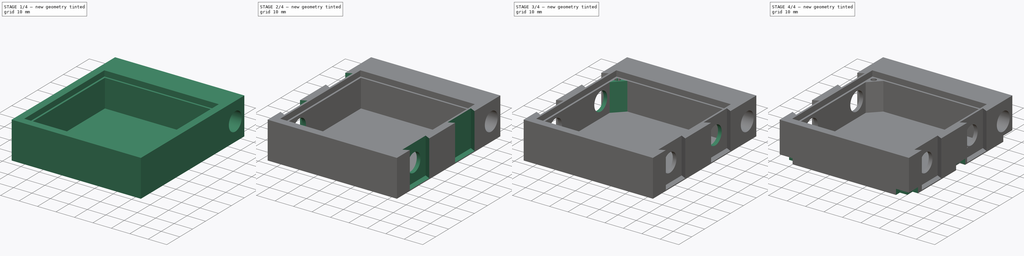
[diagram: build sequence overview — one tinted view per stage of 4, left to right]
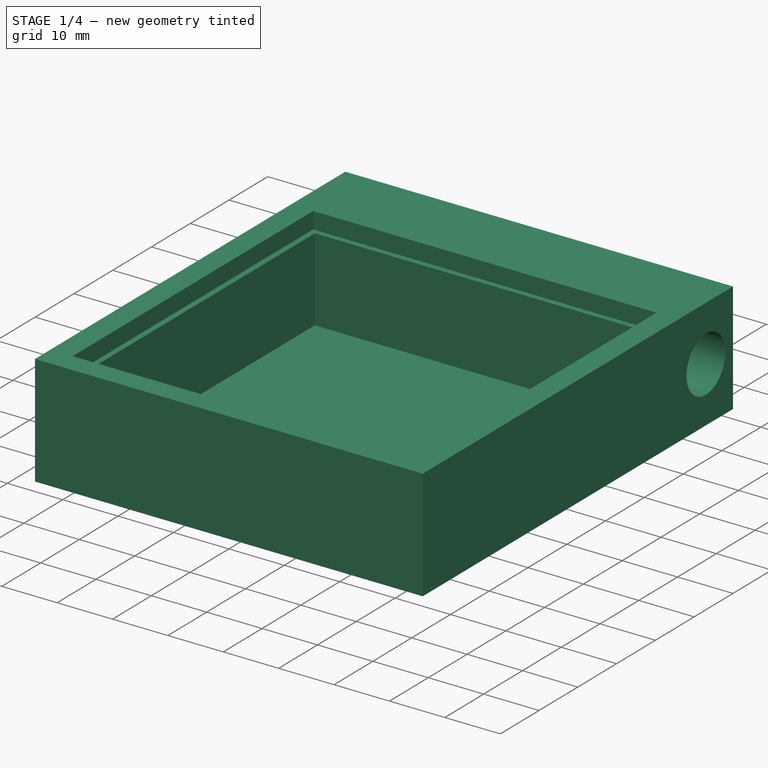
[diagram: stage 1 of 4 — iso view after this stage's code; geometry added in this stage tinted green]
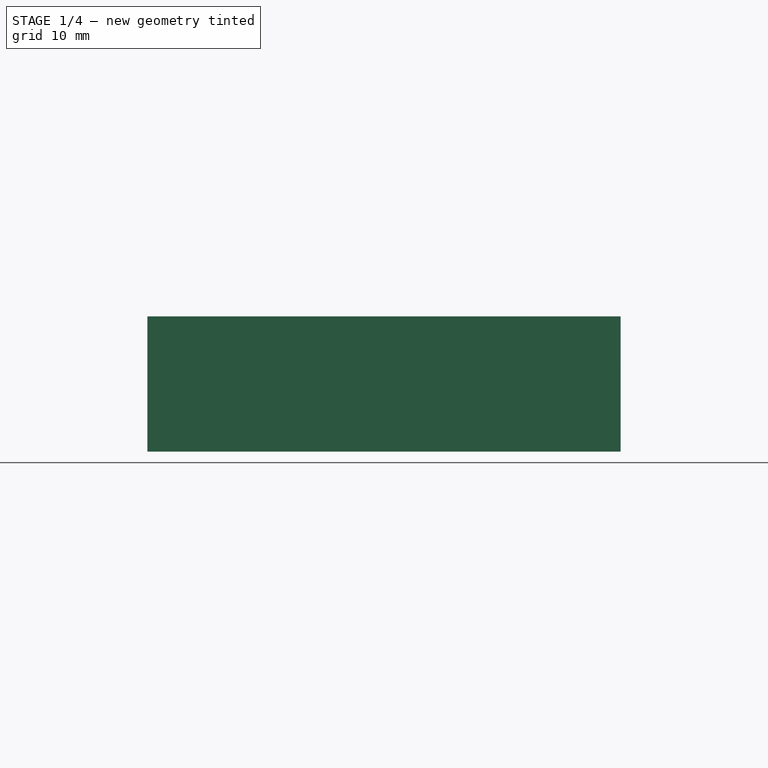
[diagram: stage 1 of 4 — front view after this stage's code; geometry added in this stage tinted green]
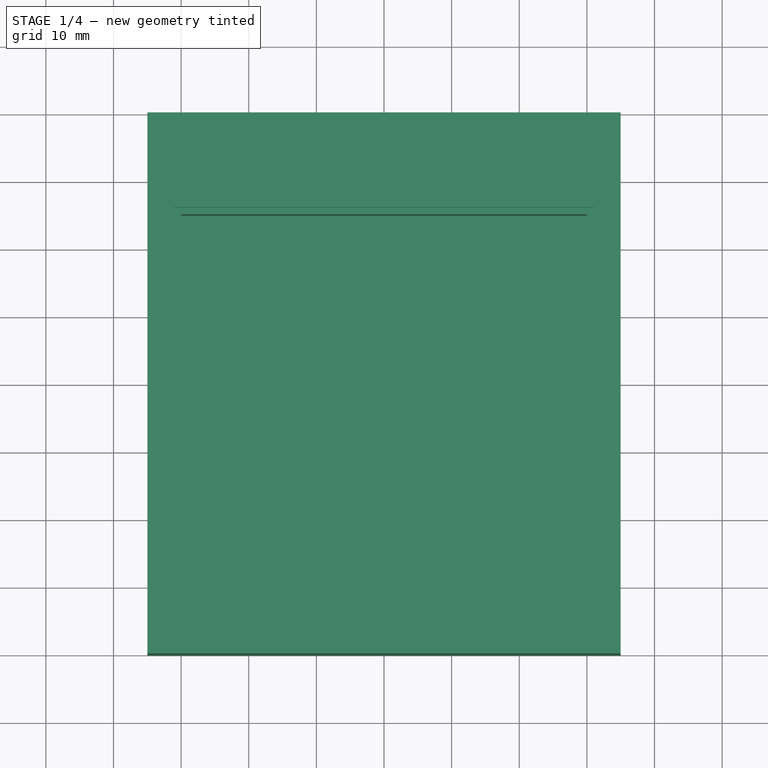
[diagram: stage 1 of 4 — top view after this stage's code; geometry added in this stage tinted green]
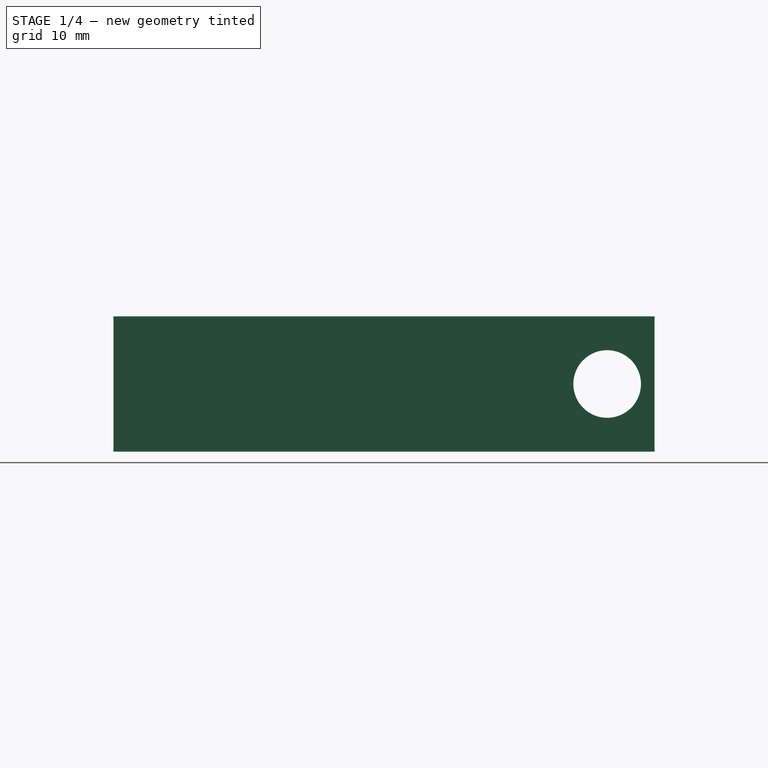
[diagram: stage 1 of 4 — right view after this stage's code; geometry added in this stage tinted green]
FCSTD DOCUMENT  (FreeCAD 0.18R16146 (Git))
Label: Formicarium_Template_S
License: All rights reserved
LicenseURL: http://en.wikipedia.org/wiki/All_rights_reserved
objects: Sketcher::SketchObject×12, PartDesign::Pocket×8, PartDesign::Pad×2, PartDesign::Mirrored×2, PartDesign::LinearPattern×2, PartDesign::SubtractiveLoft×1, PartDesign::MultiTransform×1, PartDesign::Body×1
note: 40 computed .brp shape members not serialized (recipe doc carries the construction recipe); baked Part::Feature solids carry a one-line shape summary decoded from their .brp

FEATURE [Sketcher::SketchObject] Sketch
  MapMode = 5
  Support = -> [XY_Plane]
  sketch-geometry (4):
    g0: LineSegment StartX=-35 StartY=40 StartZ=0 EndX=35 EndY=40 EndZ=0
    g1: LineSegment StartX=35 StartY=40 StartZ=0 EndX=35 EndY=-40 EndZ=0
    g2: LineSegment StartX=35 StartY=-40 StartZ=0 EndX=-35 EndY=-40 EndZ=0
    g3: LineSegment StartX=-35 StartY=-40 StartZ=0 EndX=-35 EndY=40 EndZ=0
  constraints (10):
    c: Coincident(g0,g1)
    c: Coincident(g1,g2)
    c: Coincident(g2,g3)
    c: Coincident(g3,g0)
    c: Horizontal(g0)
    c: Vertical(g3)
    c: DistanceX(g0,g0) = 70
    c: DistanceY(g1,g1) = 80
    c: Symmetric(g0,g1,g-1)
    c: Symmetric(g2,g1,g-2)
FEATURE [PartDesign::Pad] Pad  label="Main Body"
  Length = 20
  Length2 = 100
  Profile = -> Sketch
  Type = 0
FEATURE [Sketcher::SketchObject] Sketch001
  MapMode = 5
  Placement = pos=(0,0,20) rot=(0,0,1;0rad)
  Support = -> [Pad]
  sketch-geometry (4):
    g0: LineSegment StartX=-31 StartY=26 StartZ=0 EndX=31 EndY=26 EndZ=0
    g1: LineSegment StartX=31 StartY=26 StartZ=0 EndX=31 EndY=-36 EndZ=0
    g2: LineSegment StartX=31 StartY=-36 StartZ=0 EndX=-31 EndY=-36 EndZ=0
    g3: LineSegment StartX=-31 StartY=-36 StartZ=0 EndX=-31 EndY=26 EndZ=0
  constraints (11):
    c: Coincident(g0,g1)
    c: Coincident(g1,g2)
    c: Coincident(g2,g3)
    c: Coincident(g3,g0)
    c: Horizontal(g0)
    c: Vertical(g3)
    c: DistanceX(g2,g2) = 62
    c: DistanceY(g1,g1) = 62
    c: Symmetric(g2,g1,g-2)
    c: Vertical(g1)
    c: DistanceY(g2,g-1) = 36
FEATURE [PartDesign::Pocket] Pocket  label="Glass_cut"
  BaseFeature = -> Pad
  Length = 3
  Length2 = 100
  Profile = -> Sketch001
  Type = 0
FEATURE [Sketcher::SketchObject] Sketch002
  MapMode = 5
  Placement = pos=(0,0,17) rot=(0,0,1;0rad)
  Support = -> [Pocket]
  sketch-geometry (4):
    g0: LineSegment StartX=-30 StartY=25 StartZ=0 EndX=30 EndY=25 EndZ=0
    g1: LineSegment StartX=30 StartY=25 StartZ=0 EndX=30 EndY=-35 EndZ=0
    g2: LineSegment StartX=30 StartY=-35 StartZ=0 EndX=-30 EndY=-35 EndZ=0
    g3: LineSegment StartX=-30 StartY=-35 StartZ=0 EndX=-30 EndY=25 EndZ=0
  constraints (11):
    c: Coincident(g0,g1)
    c: Coincident(g1,g2)
    c: Coincident(g2,g3)
    c: Coincident(g3,g0)
    c: Horizontal(g0)
    c: Vertical(g1)
    c: DistanceX(g2,g2) = 60
    c: DistanceY(g3,g3) = 60
    c: Symmetric(g2,g1,g-2)
    c: Vertical(g3)
    c: DistanceY(g1,g-1) = 35
FEATURE [PartDesign::Pocket] Pocket001  label="Body Cut"
  BaseFeature = -> Pocket
  Length = 15
  Length2 = 100
  Profile = -> Sketch002
  Type = 0
FEATURE [Sketcher::SketchObject] Sketch003
  ExternalGeometry = -> [Pocket001]
  MapMode = 5
  Placement = pos=(0,0,2) rot=(0,0,1;0rad)
  Support = -> [Pocket001]
  sketch-geometry (4):
    g0: LineSegment StartX=-27.4 StartY=-32 StartZ=0 EndX=-27 EndY=-32 EndZ=0
    g1: LineSegment StartX=-27 StartY=-32 StartZ=0 EndX=-27 EndY=-32.4 EndZ=0
    g2: LineSegment StartX=-27 StartY=-32.4 StartZ=0 EndX=-27.4 EndY=-32.4 EndZ=0
    g3: LineSegment StartX=-27.4 StartY=-32.4 StartZ=0 EndX=-27.4 EndY=-32 EndZ=0
  constraints (14):
    c: Coincident(g0,g1)
    c: Coincident(g1,g2)
    c: Coincident(g2,g3)
    c: Coincident(g3,g0)
    c: Horizontal(g0)
    c: Horizontal(g2)
    c: Vertical(g1)
    c: Vertical(g3)
    c: DistanceX(g2,g2) = 0.4
    c: DistanceY(g1,g1) = 0.4
    c: DistanceX(g-3,g-1) = 30
    c: DistanceY(g0,g-1) = 32
    c: DistanceX(g0,g-1) = 27
    c: DistanceY(g-3,g-1) = 35
FEATURE [Sketcher::SketchObject] Sketch004
  MapMode = 5
  Placement = pos=(-35,0,0) rot=(0.57735,-0.57735,-0.57735;2.0944rad)
  sketch-geometry (1):
    g0: Circle CenterX=-33 CenterY=10 CenterZ=0 NormalX=0 NormalY=0 NormalZ=1 AngleXU=0 Radius=5
  constraints (3):
    c: Radius(g0) = 5
    c: DistanceY(g-1,g0) = 10
    c: DistanceX(g0) = -33
FEATURE [PartDesign::Pocket] Pocket003  label="Heating Cable"
  BaseFeature = -> Pocket001
  Length = 5
  Length2 = 100
  Profile = -> Sketch004
  Type = 1
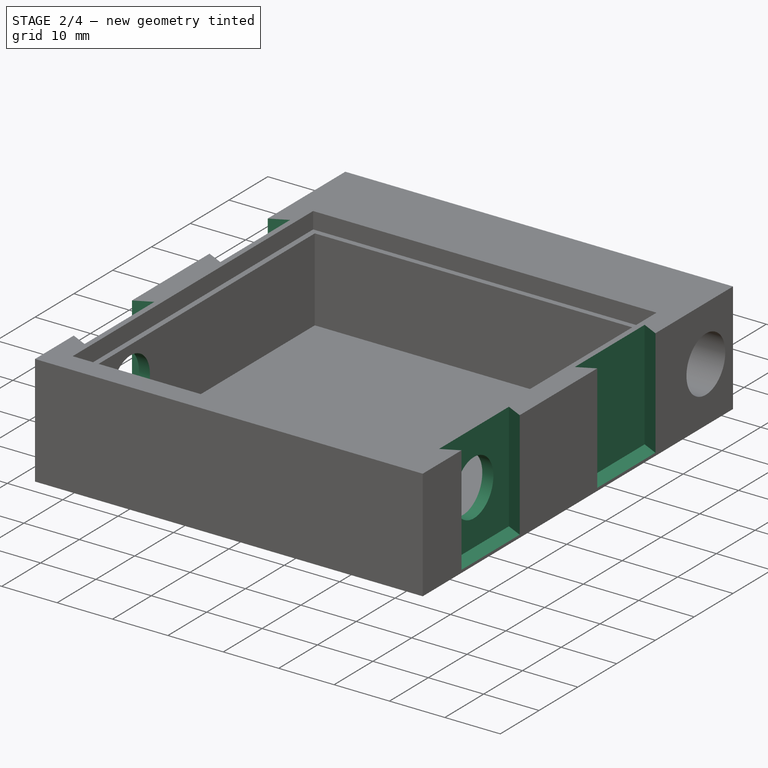
[diagram: stage 2 of 4 — iso view after this stage's code; geometry added in this stage tinted green]
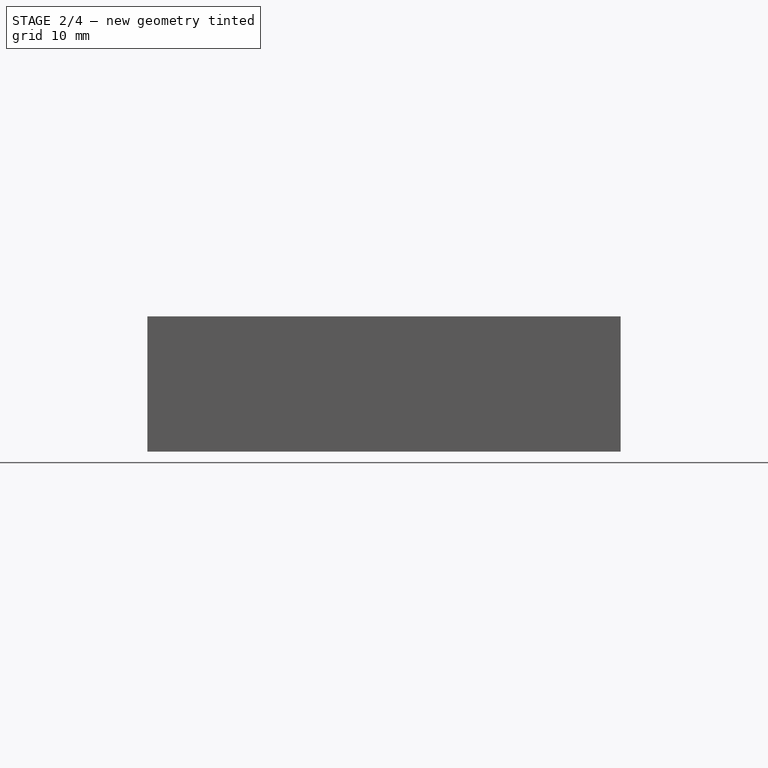
[diagram: stage 2 of 4 — front view after this stage's code; geometry added in this stage tinted green]
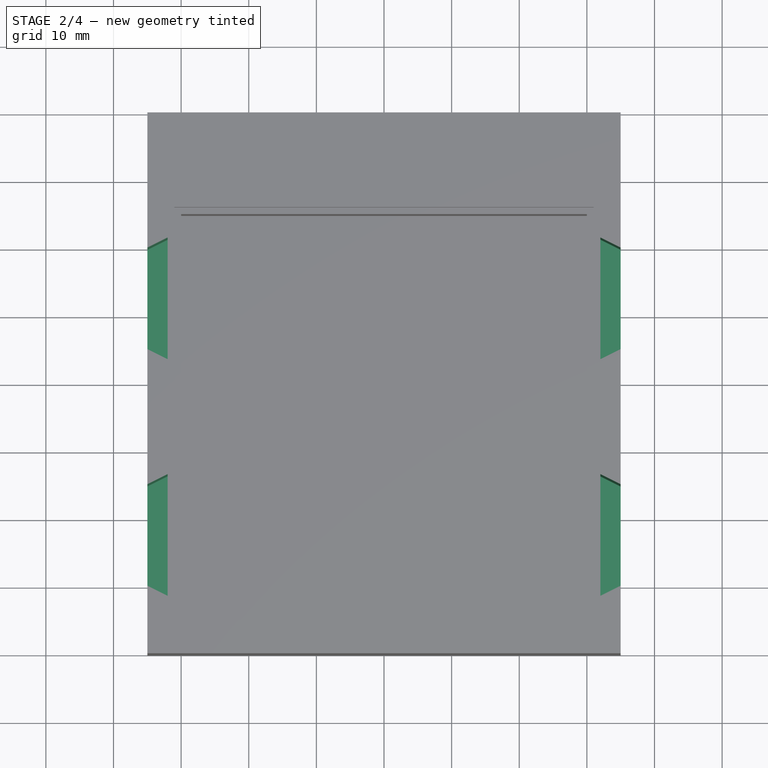
[diagram: stage 2 of 4 — top view after this stage's code; geometry added in this stage tinted green]
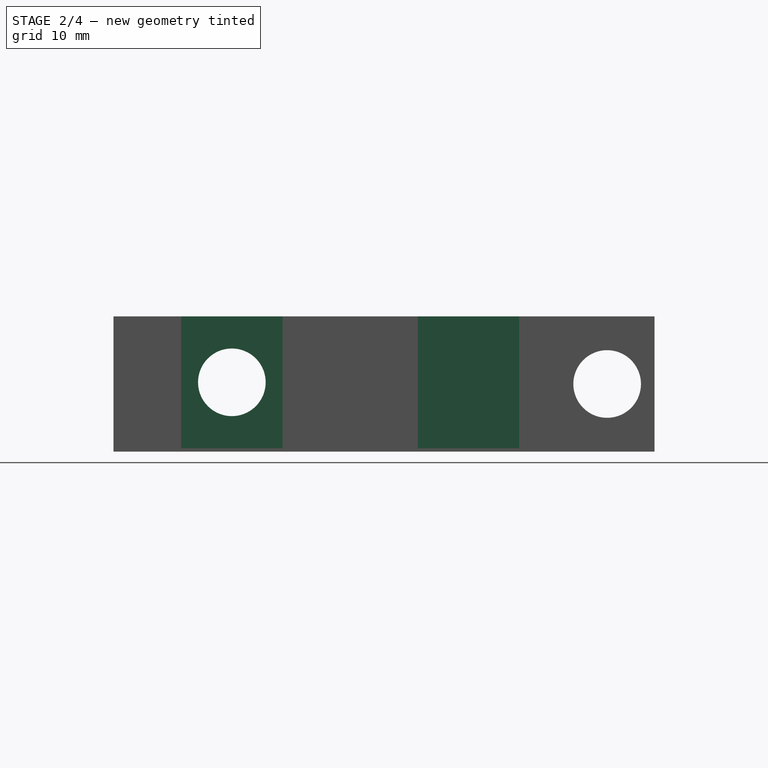
[diagram: stage 2 of 4 — right view after this stage's code; geometry added in this stage tinted green]
FEATURE [Sketcher::SketchObject] Sketch005
  MapMode = 5
  Placement = pos=(0,0,20) rot=(0,0,1;0rad)
  Support = -> [Pocket003]
  sketch-geometry (8):
    g0: LineSegment StartX=-35 StartY=-30 StartZ=0 EndX=-35 EndY=-15 EndZ=0
    g1: LineSegment StartX=-35 StartY=-15 StartZ=0 EndX=-32 EndY=-13.5 EndZ=0
    g2: LineSegment StartX=-32 StartY=-13.5 StartZ=0 EndX=-32 EndY=-31.5 EndZ=0
    g3: LineSegment StartX=-32 StartY=-31.5 StartZ=0 EndX=-35 EndY=-30 EndZ=0
    g4: LineSegment StartX=-35 StartY=20 StartZ=0 EndX=-35 EndY=5 EndZ=0
    g5: LineSegment StartX=-35 StartY=5 StartZ=0 EndX=-32 EndY=3.5 EndZ=0
    g6: LineSegment StartX=-32 StartY=3.5 StartZ=0 EndX=-32 EndY=21.5 EndZ=0
    g7: LineSegment StartX=-32 StartY=21.5 StartZ=0 EndX=-35 EndY=20 EndZ=0
  constraints (24):
    c: Coincident(g0,g1)
    c: Coincident(g1,g2)
    c: Coincident(g2,g3)
    c: Coincident(g3,g0)
    c: Vertical(g2)
    c: DistanceY(g2,g2) = 18
    c: DistanceY(g0,g0) = 15
    c: Vertical(g0)
    c: DistanceX(g0,g1) = 3
    c: Equal(g1,g3)
    c: DistanceY(g0,g-1) = 30
    c: DistanceX(g0,g-1) = 35
    c: Coincident(g4,g5)
    c: Coincident(g5,g6)
    c: Coincident(g6,g7)
    c: Coincident(g7,g4)
    c: Equal(g5,g3)
    c: Equal(g7,g1)
    c: Equal(g6,g2)
    c: Equal(g4,g0)
    c: DistanceX(g4,g6) = 3
    c: Vertical(g4)
    c: DistanceY(g0,g4) = 20
    c: DistanceX(g4,g-1) = 35
FEATURE [PartDesign::Pocket] Pocket004  label="Connector Cutouts"
  BaseFeature = -> Pocket003
  Length = 19.5
  Length2 = 100
  Profile = -> Sketch005
  Type = 0
FEATURE [PartDesign::Mirrored] Mirrored  label="CC_Mirror"
  BaseFeature = -> Pocket004
  MirrorPlane = -> Sketch005 [V_Axis]
  Originals = -> [Pocket004]
FEATURE [Sketcher::SketchObject] Sketch006
  ExternalGeometry = -> [Mirrored]
  MapMode = 5
  Placement = pos=(-32,0,0) rot=(0.57735,-0.57735,-0.57735;2.0944rad)
  Support = -> [Mirrored]
  sketch-geometry (1):
    g0: Circle CenterX=22.5 CenterY=10.25 CenterZ=0 NormalX=0 NormalY=0 NormalZ=1 AngleXU=0 Radius=5
  constraints (3):
    c: Radius(g0) = 5
    c: DistanceY(g-3,g0) = 9.75
    c: DistanceX(g-3,g0) = 7.5
FEATURE [PartDesign::Pocket] Pocket005
  BaseFeature = -> Mirrored
  Length = 5
  Length2 = 100
  Profile = -> Sketch006
  Type = 1
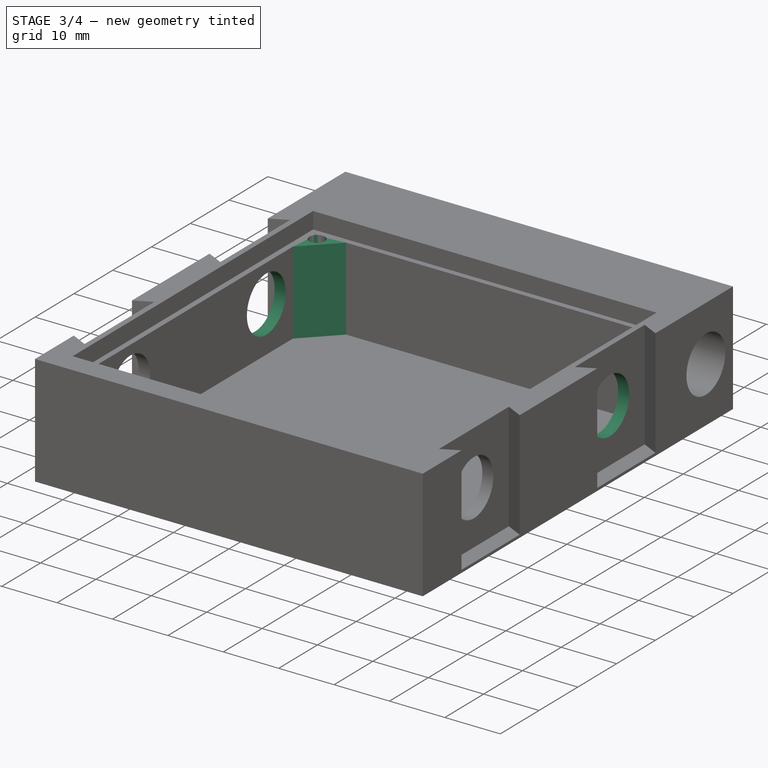
[diagram: stage 3 of 4 — iso view after this stage's code; geometry added in this stage tinted green]
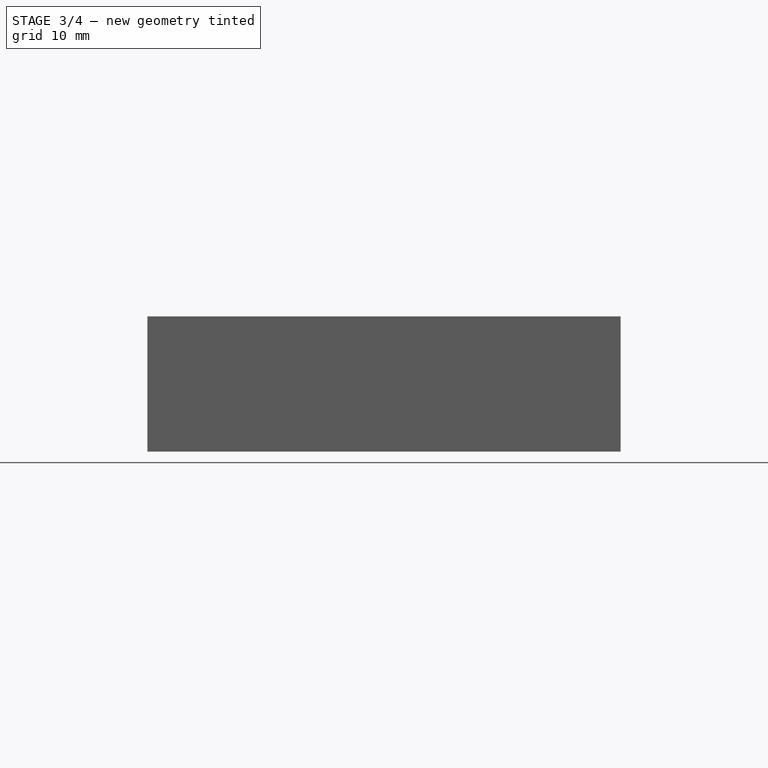
[diagram: stage 3 of 4 — front view after this stage's code; geometry added in this stage tinted green]
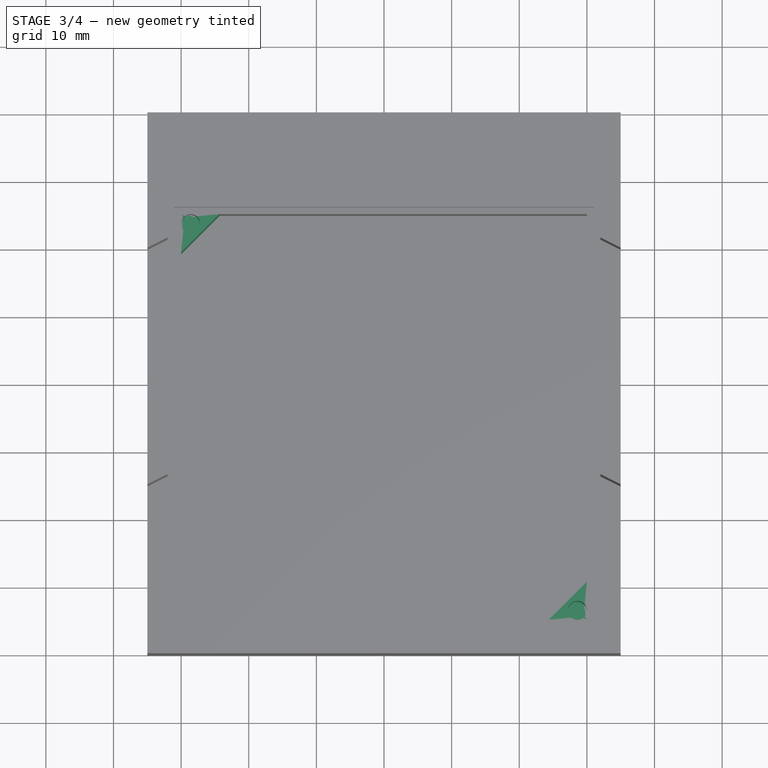
[diagram: stage 3 of 4 — top view after this stage's code; geometry added in this stage tinted green]
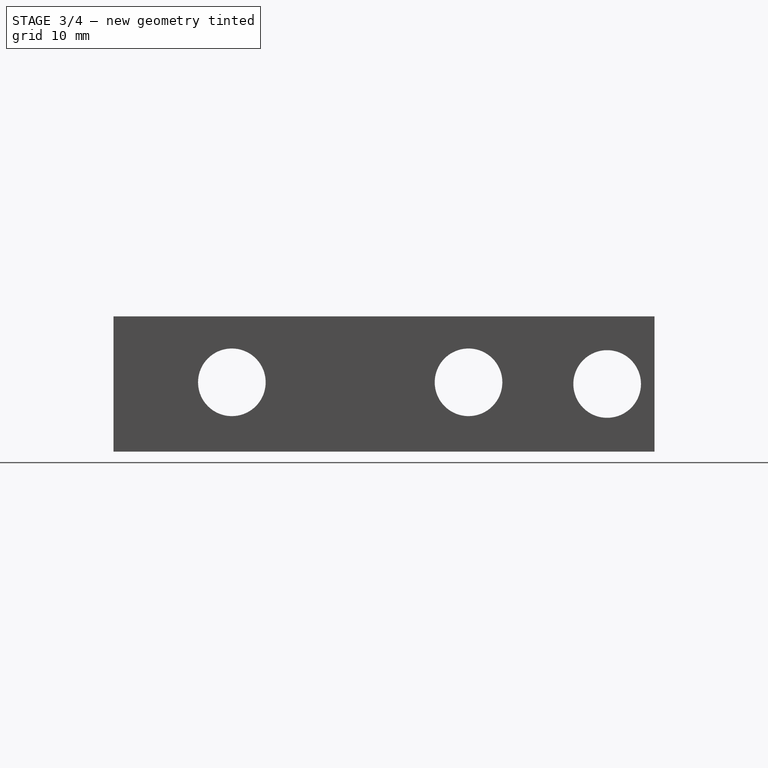
[diagram: stage 3 of 4 — right view after this stage's code; geometry added in this stage tinted green]
FEATURE [Sketcher::SketchObject] Sketch007
  ExternalGeometry = -> [Pocket005]
  MapMode = 5
  Placement = pos=(-32,-1.2e-13,0) rot=(0.57735,-0.57735,-0.57735;2.0944rad)
  Support = -> [Pocket005]
  sketch-geometry (1):
    g0: Circle CenterX=-12.5 CenterY=10.25 CenterZ=0 NormalX=0 NormalY=0 NormalZ=1 AngleXU=0 Radius=5
  constraints (3):
    c: Radius(g0) = 5
    c: DistanceY(g-3,g0) = 9.75
    c: DistanceX(g-3,g0) = 7.5
FEATURE [PartDesign::Pocket] Pocket006
  BaseFeature = -> Pocket005
  Length = 2
  Length2 = 100
  Profile = -> Sketch007
  Type = 1
FEATURE [Sketcher::SketchObject] Sketch010
  MapMode = 5
  Placement = pos=(0,0,2) rot=(0,0,1;0rad)
  sketch-geometry (6):
    g0: LineSegment StartX=-30 StartY=25 StartZ=0 EndX=-30 EndY=19.3431 EndZ=0
    g1: LineSegment StartX=-30 StartY=19.3431 StartZ=0 EndX=-24.3431 EndY=25 EndZ=0
    g2: LineSegment StartX=-24.3431 StartY=25 StartZ=0 EndX=-30 EndY=25 EndZ=0
    g3: LineSegment StartX=24.3431 StartY=-35 StartZ=0 EndX=30 EndY=-35 EndZ=0
    g4: LineSegment StartX=30 StartY=-35 StartZ=0 EndX=30 EndY=-29.3431 EndZ=0
    g5: LineSegment StartX=30 StartY=-29.3431 StartZ=0 EndX=24.3431 EndY=-35 EndZ=0
  constraints (12):
    c: Coincident(g0,g1)
    c: Coincident(g1,g2)
    c: Coincident(g2,g0)
    c: Coincident(g3,g4)
    c: Coincident(g4,g5)
    c: Coincident(g5,g3)
    c: Distance(g1) = 8
    c: Perpendicular(g0,g2)
    c: Equal(g0,g2)
    c: Perpendicular(g4,g3)
    c: Distance(g5) = 8
    c: Equal(g3,g4)
FEATURE [PartDesign::Pad] Pad001  label="Borehole_Support"
  BaseFeature = -> Pocket006
  Length = 15
  Length2 = 100
  Profile = -> Sketch010
  Type = 0
FEATURE [Sketcher::SketchObject] Sketch011
  ExternalGeometry = -> [Pad001]
  MapMode = 5
  Placement = pos=(0,0,17) rot=(0,0,1;0rad)
  Support = -> [Pad001]
  sketch-geometry (2):
    g0: Circle CenterX=-28.6 CenterY=23.6 CenterZ=0 NormalX=0 NormalY=0 NormalZ=1 AngleXU=0 Radius=1.4
    g1: Circle CenterX=28.6 CenterY=-33.6 CenterZ=0 NormalX=0 NormalY=0 NormalZ=1 AngleXU=0 Radius=1.4
  constraints (6):
    c: Radius(g0) = 1.4
    c: Radius(g1) = 1.4
    c: Tangent(g0,g-3)
    c: Tangent(g0,g-4)
    c: Tangent(g1,g-5)
    c: Tangent(g-6,g1)
FEATURE [PartDesign::Pocket] Pocket009  label="Boreholes"
  BaseFeature = -> Pad001
  Length = 8
  Length2 = 100
  Profile = -> Sketch011
  Type = 0
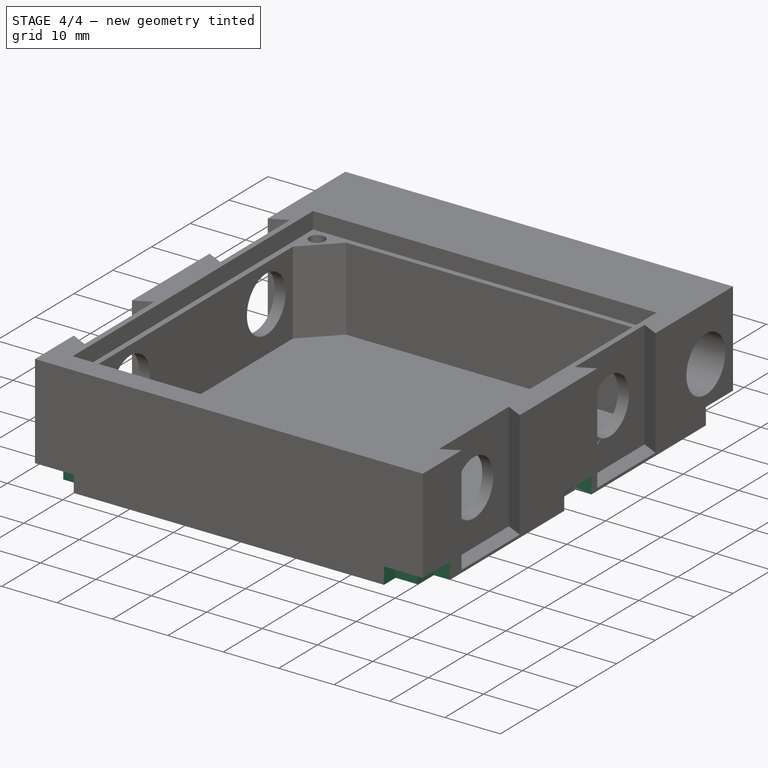
[diagram: stage 4 of 4 — iso view after this stage's code; geometry added in this stage tinted green]
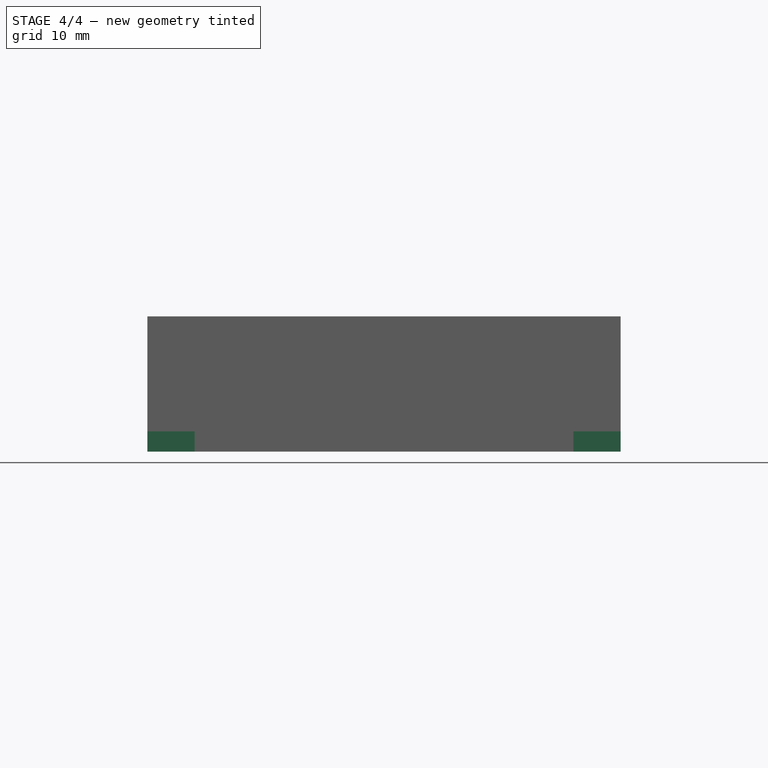
[diagram: stage 4 of 4 — front view after this stage's code; geometry added in this stage tinted green]
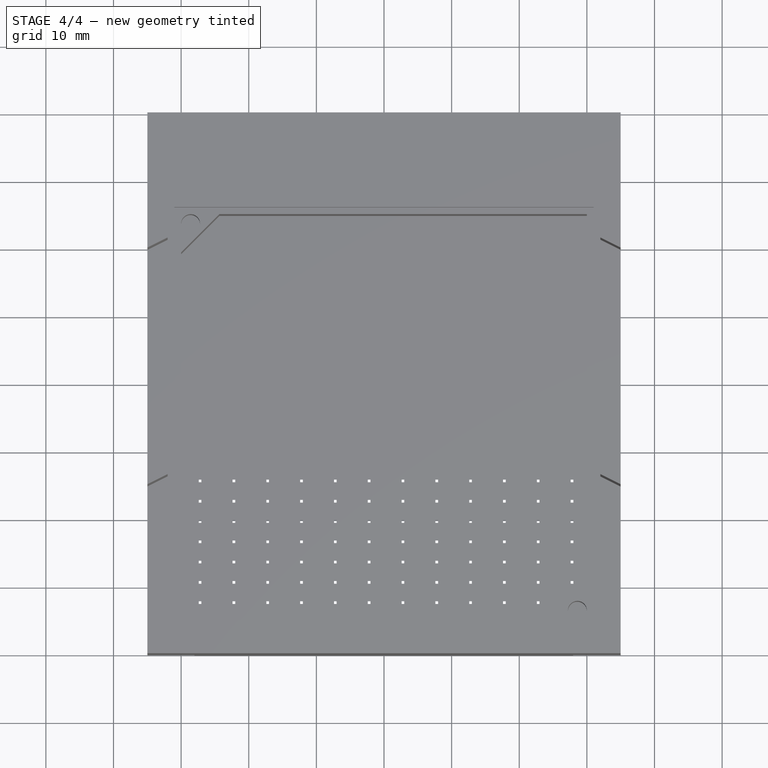
[diagram: stage 4 of 4 — top view after this stage's code; geometry added in this stage tinted green]
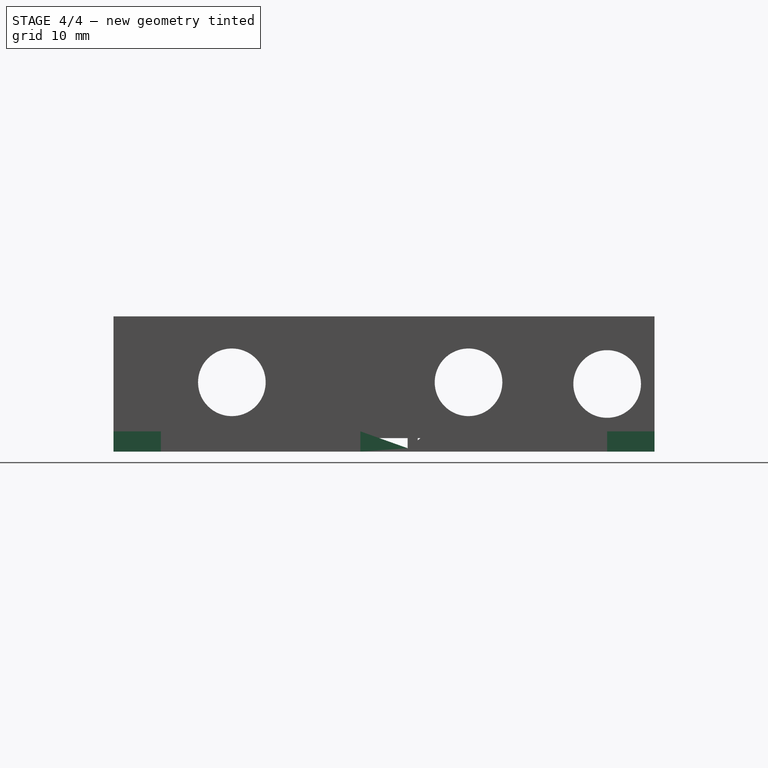
[diagram: stage 4 of 4 — right view after this stage's code; geometry added in this stage tinted green]
FEATURE [Sketcher::SketchObject] Sketch012
  MapMode = 5
  Placement = pos=(0,0,0) rot=(1,0,0;3.14159rad)
  Support = -> [Pocket009]
  sketch-geometry (16):
    g0: LineSegment StartX=-35 StartY=3.5 StartZ=0 EndX=-32 EndY=3.5 EndZ=0
    g1: LineSegment StartX=-32 StartY=3.5 StartZ=0 EndX=-32 EndY=-3.5 EndZ=0
    g2: LineSegment StartX=-32 StartY=-3.5 StartZ=0 EndX=-35 EndY=-3.5 EndZ=0
    g3: LineSegment StartX=-35 StartY=-3.5 StartZ=0 EndX=-35 EndY=3.5 EndZ=0
    g4: LineSegment StartX=-35 StartY=33 StartZ=0 EndX=-32 EndY=33 EndZ=0
    g5: LineSegment StartX=-32 StartY=33 StartZ=0 EndX=-32 EndY=37 EndZ=0
    g6: LineSegment StartX=-32 StartY=37 StartZ=0 EndX=-28 EndY=37 EndZ=0
    g7: LineSegment StartX=-28 StartY=37 StartZ=0 EndX=-28 EndY=40 EndZ=0
    g8: LineSegment StartX=-28 StartY=40 StartZ=0 EndX=-35 EndY=40 EndZ=0
    g9: LineSegment StartX=-35 StartY=40 StartZ=0 EndX=-35 EndY=33 EndZ=0
    g10: LineSegment StartX=-35 StartY=-33 StartZ=0 EndX=-35 EndY=-40 EndZ=0
    g11: LineSegment StartX=-35 StartY=-40 StartZ=0 EndX=-28 EndY=-40 EndZ=0
    g12: LineSegment StartX=-28 StartY=-40 StartZ=0 EndX=-28 EndY=-37 EndZ=0
    g13: LineSegment StartX=-28 StartY=-37 StartZ=0 EndX=-32 EndY=-37 EndZ=0
    g14: LineSegment StartX=-32 StartY=-37 StartZ=0 EndX=-32 EndY=-33 EndZ=0
    g15: LineSegment StartX=-32 StartY=-33 StartZ=0 EndX=-35 EndY=-33 EndZ=0
  constraints (47):
    c: Coincident(g0,g1)
    c: Coincident(g1,g2)
    c: Coincident(g2,g3)
    c: Coincident(g3,g0)
    c: Horizontal(g0)
    c: Horizontal(g2)
    c: Vertical(g3)
    c: DistanceY(g1,g1) = 7
    c: DistanceX(g0,g0) = 3
    c: Symmetric(g1,g0,g-1)
    c: DistanceX(g2) = -35
    c: Coincident(g4,g5)
    c: Coincident(g5,g6)
    c: Coincident(g6,g7)
    c: Vertical(g7)
    c: Coincident(g7,g8)
    c: Coincident(g8,g9)
    c: Coincident(g9,g4)
    c: Vertical(g9)
    c: Vertical(g5)
    c: Horizontal(g8)
    c: Horizontal(g4)
    c: DistanceX(g4,g4) = 3
    c: DistanceX(g8,g8) = 7
    c: DistanceY(g7,g7) = 3
    c: DistanceY(g9,g9) = 7
    c: Perpendicular(g5,g6)
    c: DistanceX(g4,g-1) = 35
    c: DistanceY(g8) = 40
    c: Coincident(g10,g11)
    c: Horizontal(g11)
    c: Coincident(g11,g12)
    c: Coincident(g12,g13)
    c: Horizontal(g13)
    c: Coincident(g13,g14)
    c: Coincident(g14,g15)
    c: Coincident(g15,g10)
    c: Horizontal(g15)
    c: Vertical(g14)
    c: Vertical(g10)
    c: Vertical(g12)
    c: DistanceX(g11,g11) = 7
    c: DistanceX(g15,g15) = 3
    c: DistanceY(g10,g10) = 7
    c: DistanceY(g12,g12) = 3
    c: DistanceX(g10,g-1) = 35
    c: DistanceY(g10,g-1) = 40
FEATURE [PartDesign::Pocket] Pocket010
  BaseFeature = -> Pocket009
  Length = 3
  Length2 = 100
  Profile = -> Sketch012
  Type = 0
FEATURE [PartDesign::Mirrored] Mirrored001
  BaseFeature = -> Pocket010
  MirrorPlane = -> Sketch012 [V_Axis]
  Originals = -> [Pocket010]
FEATURE [Sketcher::SketchObject] Sketch013
  MapMode = 5
  Placement = pos=(0,0,0) rot=(1,0,0;3.14159rad)
  Support = -> [Pocket006]
  sketch-geometry (4):
    g0: LineSegment StartX=-27.8 StartY=32.8 StartZ=0 EndX=-26.6 EndY=32.8 EndZ=0
    g1: LineSegment StartX=-26.6 StartY=32.8 StartZ=0 EndX=-26.6 EndY=31.6 EndZ=0
    g2: LineSegment StartX=-26.6 StartY=31.6 StartZ=0 EndX=-27.8 EndY=31.6 EndZ=0
    g3: LineSegment StartX=-27.8 StartY=31.6 StartZ=0 EndX=-27.8 EndY=32.8 EndZ=0
  constraints (12):
    c: Coincident(g0,g1)
    c: Coincident(g1,g2)
    c: Coincident(g2,g3)
    c: Coincident(g3,g0)
    c: Horizontal(g0)
    c: Horizontal(g2)
    c: Vertical(g1)
    c: Vertical(g3)
    c: DistanceY(g1,g1) = 1.2
    c: DistanceX(g0,g0) = 1.2
    c: DistanceX(g1) = -26.6
    c: DistanceY(g1) = 31.6
FEATURE [PartDesign::SubtractiveLoft] SubtractiveLoft
  BaseFeature = -> Mirrored001
  Closed = false
  Profile = -> Sketch013
  Ruled = false
  Sections = -> [Sketch003]
FEATURE [PartDesign::LinearPattern] LinearPattern
  Direction = -> Sketch013 [H_Axis]
  Length = 55
  Occurrences = 12
FEATURE [PartDesign::LinearPattern] LinearPattern001
  Direction = -> Sketch013 [V_Axis]
  Length = 18
  Occurrences = 7
  Reversed = true
FEATURE [PartDesign::MultiTransform] MultiTransform
  BaseFeature = -> SubtractiveLoft
  Originals = -> [SubtractiveLoft]
  Transformations = -> [LinearPattern,LinearPattern001]
FEATURE [PartDesign::Body] Body
  Group = -> [Sketch,Pad,Sketch001,Pocket,Sketch002,Pocket001,Sketch003,Sketch004,Pocket003,Sketch005,Pocket004,Mirrored,Sketch006,Pocket005,Sketch007,Pocket006,Sketch010,Pad001,Sketch011,Pocket009,Sketch012,Pocket010,Mirrored001,Sketch013,SubtractiveLoft,MultiTransform,LinearPattern,LinearPattern001]
  Origin = -> Origin
  Tip = -> MultiTransform
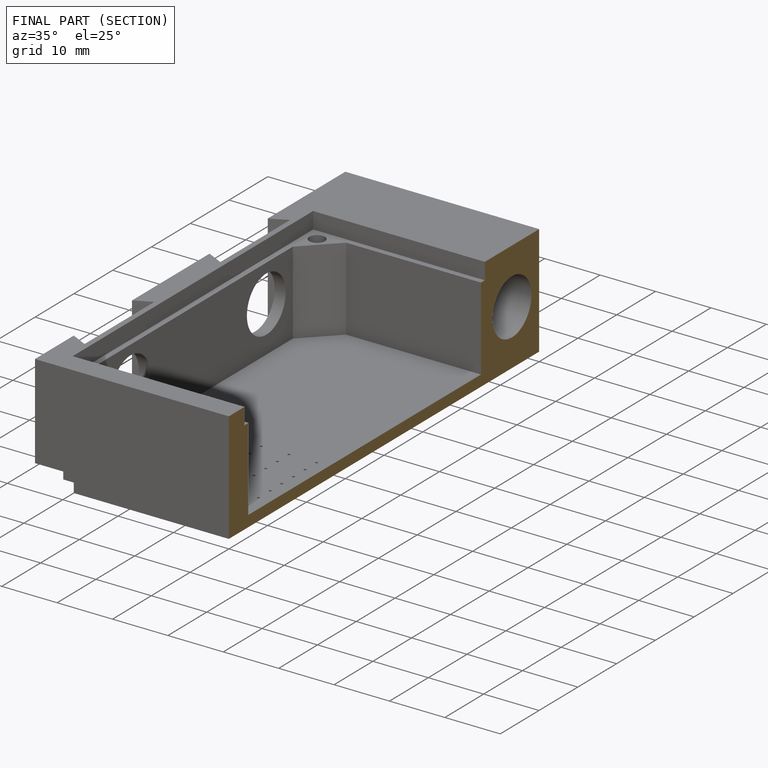
[diagram: finished part — half-section view (interior)]
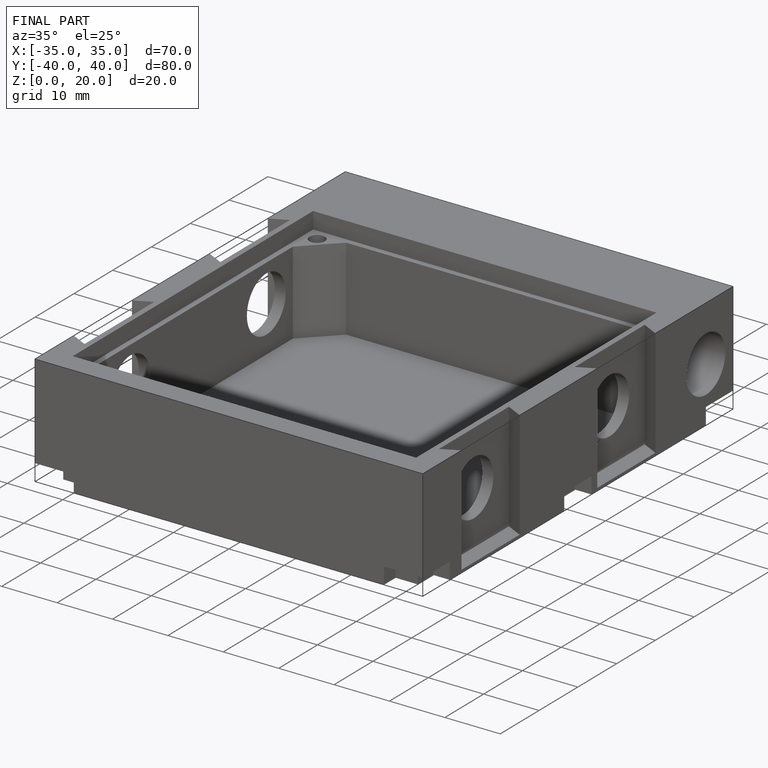
[diagram: finished part — iso view with bounding-box wireframe]
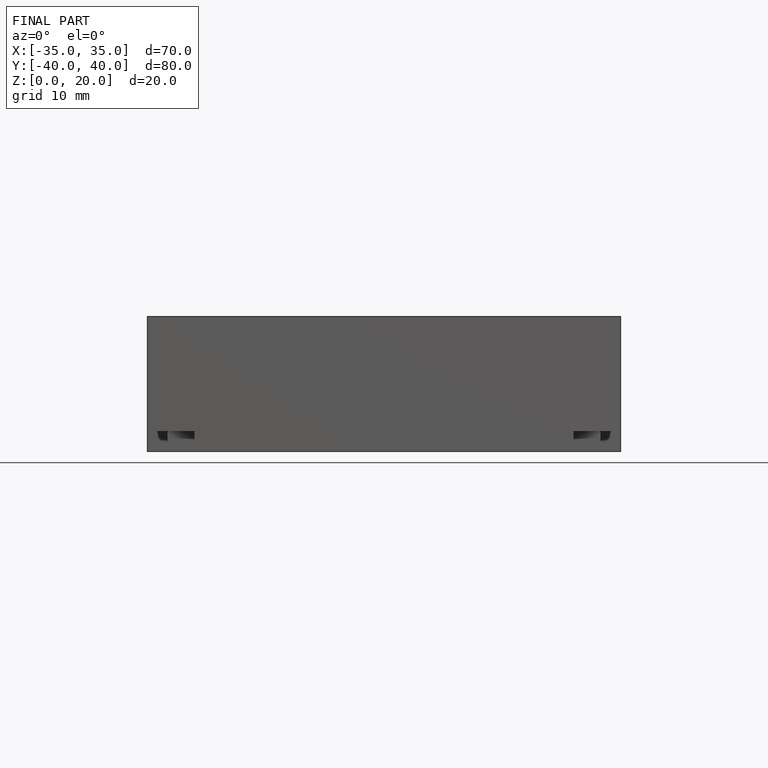
[diagram: finished part — front view with bounding-box wireframe]
